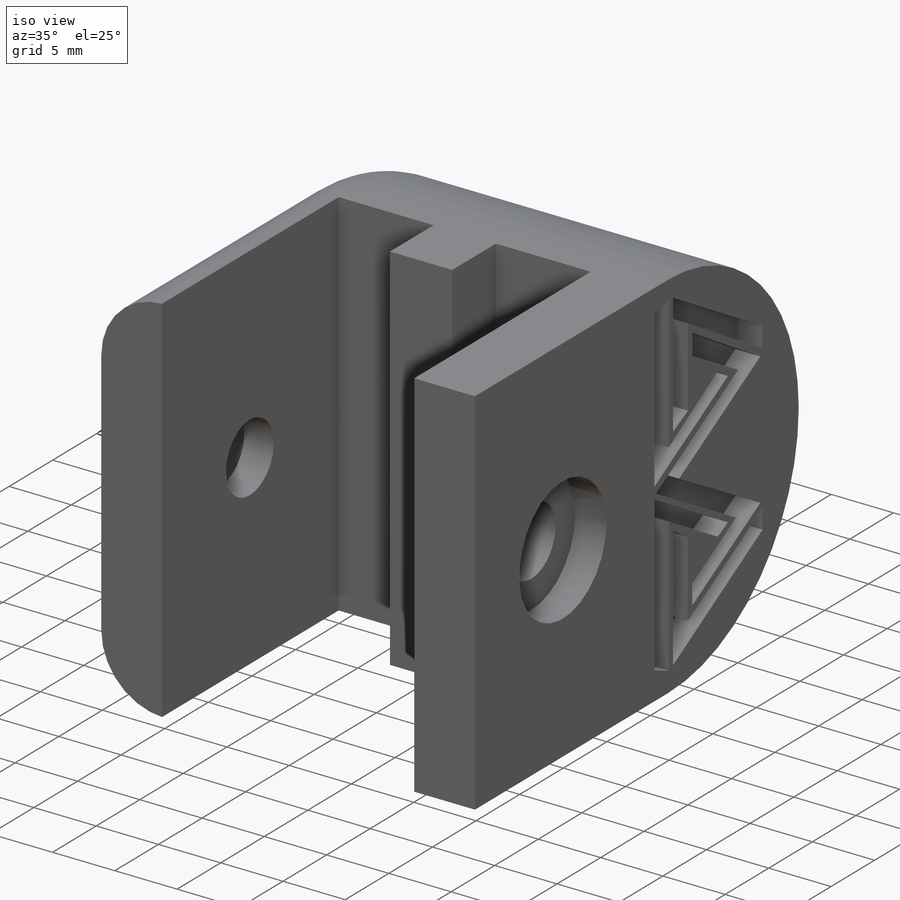
[diagram: iso view]
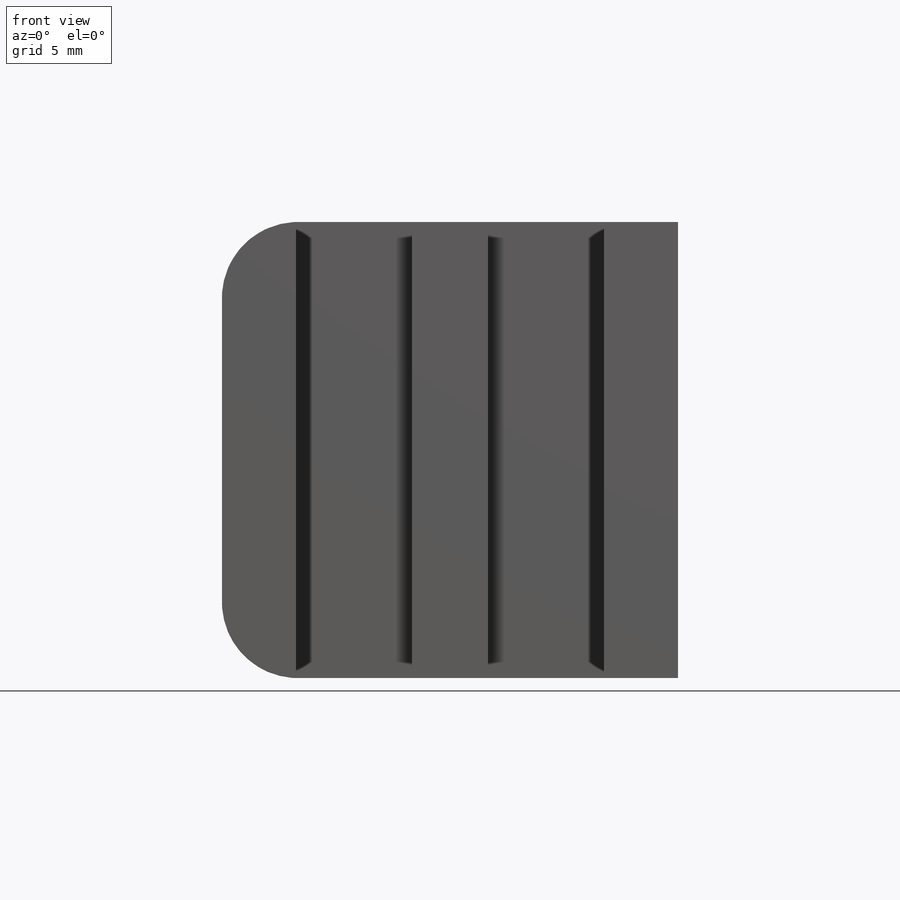
[diagram: front view]
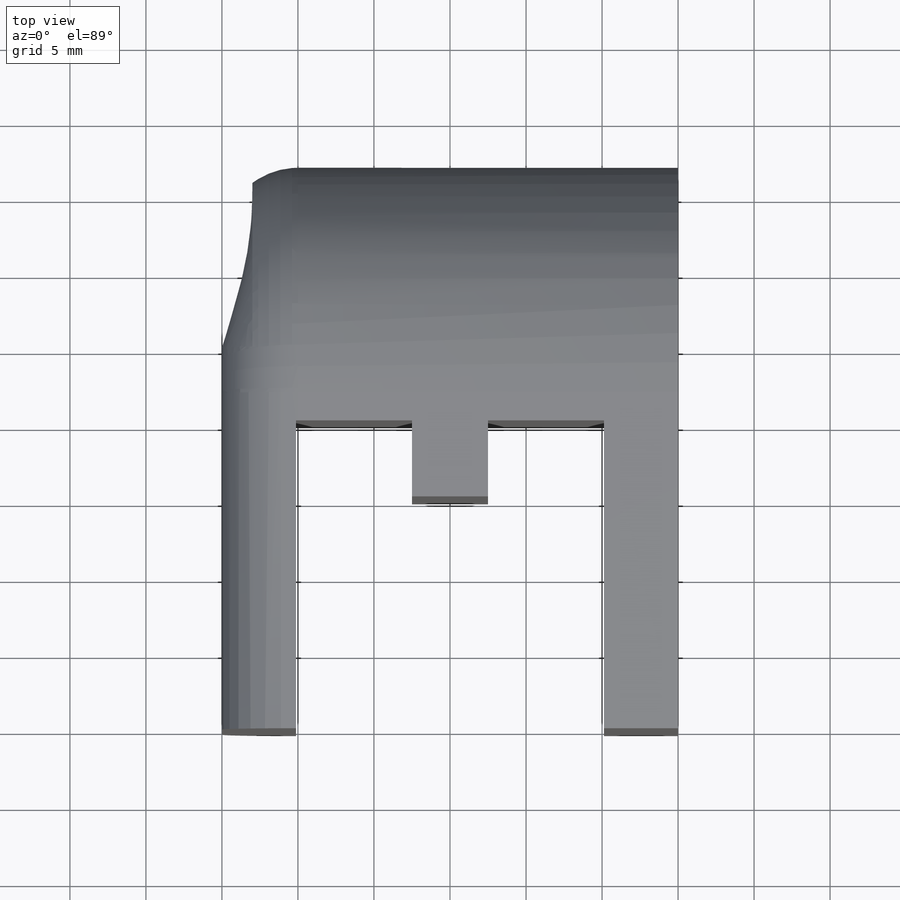
[diagram: top view]
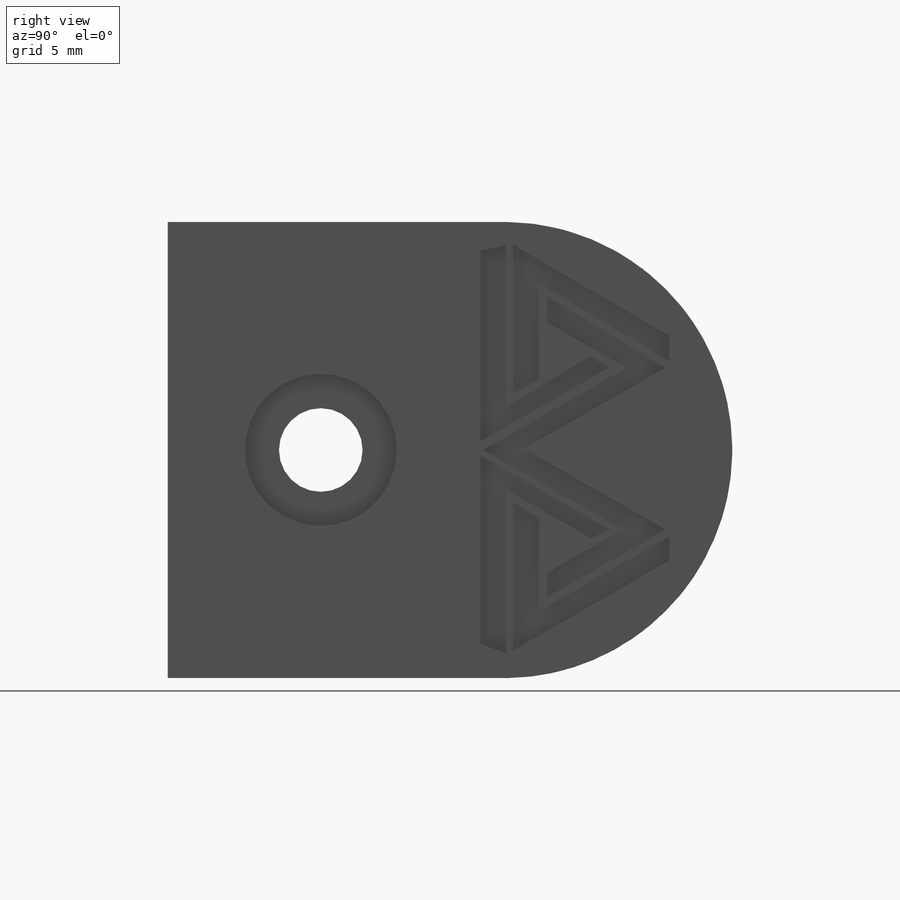
[diagram: right view]
SOLIDWORKS PART (.sldprt)
format: sldprt  version: not decoded by parser v0  size: 413,184 bytes
history: native  units: mm
features: sketch x8, cut_extrude x6, extrude x2, fillet x2, material x1 (+13 scaffold rows collapsed)
feature tree (32):
  scaffold x13  (default folders/planes/origin — collapsed)
  material  "Material <not specified>"
  sketch  "Sketch1"  dims[D1=30.0mm D2=30.0mm]
  extrude  "Boss-Extrude2"  Depth=30mm
  sketch  "Sketch2"  dims[D1=20.25mm D2=20.25mm D3=5.0mm D4=5.0mm D5=2.5mm D6=5.0mm D7=5.0mm D8=2.5mm]
  cut_extrude  "Cut-Extrude1"  [1 undecoded]
  sketch  "Sketch3"  dims[D1=2.0mm D2=2.0mm]
  extrude  "Boss-Extrude3"  Depth=12mm
  sketch  "Sketch4"  dims[D1=10.1mm]
  cut_extrude  "Cut-Extrude2"  Depth=10mm
  fillet  "Fillet2"  Radius=15mm
  sketch  "Sketch5"  dims[D2=5.5mm D1=5.0mm]
  cut_extrude  "Cut-Extrude4"  [1 undecoded]
  sketch  "Sketch6"  dims[D1=10.0mm]
  cut_extrude  "Cut-Extrude5"  Depth=2.5mm
  sketch  "Sketch7"  dims[D1=10.0mm]
  cut_extrude  "Cut-Extrude6"  Depth=2.5mm
  fillet  "Fillet5"  Radius=5mm
  sketch  "Sketch10"
  cut_extrude  "Cut-Extrude7"  Depth=2mm
decode coverage: 15 of 18 modeling features carry decoded parameters
note: 2 parameter values undecoded
note: suppression state not decoded; provenance and decode notes live in map.json
